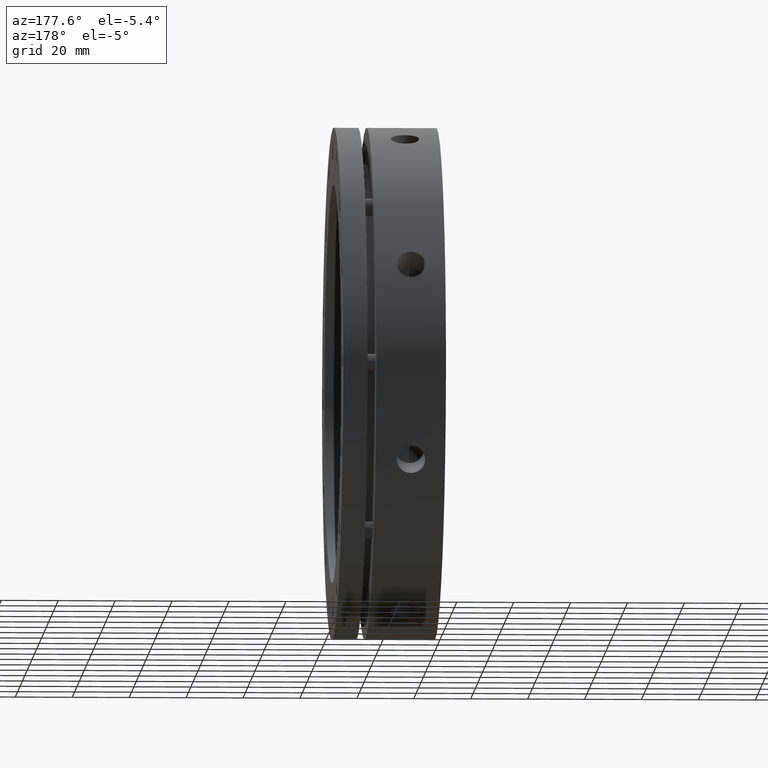
[diagram: clean part render]
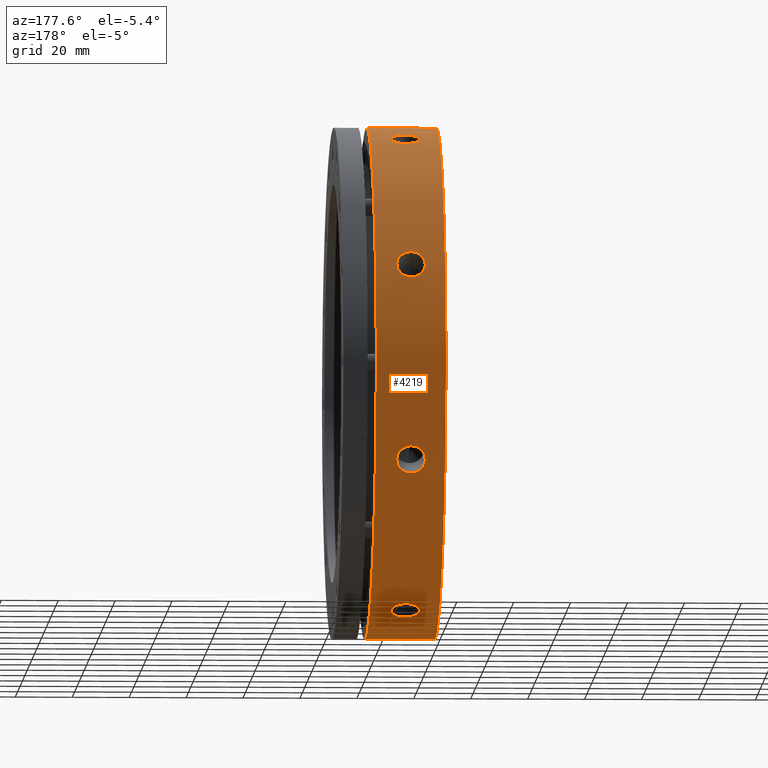
[diagram: same view with one face highlighted and labeled with its STEP entity id]
A machine part, auxiliary view. The second image highlights one B-rep face of the part: STEP entity #4219.
In plain terms, the highlighted cylindrical surface (partial cylindrical patch) has radius 90 mm, axis along (1, 0, 0).
Its self-contained STEP definition (entity closure, byte-faithful):
#109 = EDGE_LOOP ( 'NONE', ( #995, #957 ) ) ;
#120 = EDGE_LOOP ( 'NONE', ( #990, #994 ) ) ;
#276 = EDGE_LOOP ( 'NONE', ( #951, #834 ) ) ;
#280 = EDGE_LOOP ( 'NONE', ( #993, #887 ) ) ;
#285 = EDGE_LOOP ( 'NONE', ( #804, #918, #1013, #1015 ) ) ;
#804 = ORIENTED_EDGE ( 'NONE', *, *, #5485, .T. ) ;
#834 = ORIENTED_EDGE ( 'NONE', *, *, #5481, .T. ) ;
#887 = ORIENTED_EDGE ( 'NONE', *, *, #5480, .T. ) ;
#918 = ORIENTED_EDGE ( 'NONE', *, *, #5501, .T. ) ;
#951 = ORIENTED_EDGE ( 'NONE', *, *, #5483, .T. ) ;
#957 = ORIENTED_EDGE ( 'NONE', *, *, #5484, .T. ) ;
#990 = ORIENTED_EDGE ( 'NONE', *, *, #5486, .T. ) ;
#993 = ORIENTED_EDGE ( 'NONE', *, *, #5482, .T. ) ;
#994 = ORIENTED_EDGE ( 'NONE', *, *, #5479, .T. ) ;
#995 = ORIENTED_EDGE ( 'NONE', *, *, #5503, .T. ) ;
#1013 = ORIENTED_EDGE ( 'NONE', *, *, #5502, .T. ) ;
#1015 = ORIENTED_EDGE ( 'NONE', *, *, #5500, .F. ) ;
#1091 = AXIS2_PLACEMENT_3D ( 'NONE', #5020, #5017, #5019 ) ;
#1508 = FACE_BOUND ( 'NONE', #280, .T. ) ;
#1510 = FACE_BOUND ( 'NONE', #276, .T. ) ;
#1512 = FACE_BOUND ( 'NONE', #109, .T. ) ;
#1514 = FACE_OUTER_BOUND ( 'NONE', #285, .T. ) ;
#1516 = FACE_BOUND ( 'NONE', #120, .T. ) ;
#1521 = CYLINDRICAL_SURFACE ( 'NONE', #1091, 90.00000000000000000 ) ;
#1754 = CIRCLE ( 'NONE', #3706, 90.00000000000000000 ) ;
#1764 = LINE ( 'NONE', #2780, #1773 ) ;
#1772 = LINE ( 'NONE', #2784, #1775 ) ;
#1773 = VECTOR ( 'NONE', #2775, 1000.000000000000000 ) ;
#1774 = CIRCLE ( 'NONE', #3700, 90.00000000000000000 ) ;
#1775 = VECTOR ( 'NONE', #2785, 1000.000000000000000 ) ;
#2358 = CARTESIAN_POINT ( 'NONE',  ( 12.32612550949121300, 84.93415932329185100, 29.76891969900278700 ) ) ;
#2359 = CARTESIAN_POINT ( 'NONE',  ( 11.99999999999997500, 39.00771502411566200, 81.10732499964095200 ) ) ;
#2374 = CARTESIAN_POINT ( 'NONE',  ( 11.99999999999997500, 84.93415932329185100, 29.76891969900278000 ) ) ;
#2376 = CARTESIAN_POINT ( 'NONE',  ( 12.32612550949121700, 39.00771502411564700, 81.10732499964093700 ) ) ;
#2377 = CARTESIAN_POINT ( 'NONE',  ( 11.99999999999997500, 29.76891969900278000, -84.93415932329185100 ) ) ;
#2378 = CARTESIAN_POINT ( 'NONE',  ( 12.65737027968698700, 84.92336391371416900, 29.79977116750092100 ) ) ;
#2379 = CARTESIAN_POINT ( 'NONE',  ( 13.29852594518094100, 84.88087508380931500, 29.92058062710851700 ) ) ;
#2380 = CARTESIAN_POINT ( 'NONE',  ( 13.61015859449483200, 84.84941714429099600, 30.00986761088022100 ) ) ;
#2381 = CARTESIAN_POINT ( 'NONE',  ( 14.21543278121400700, 84.76541055807720700, 30.24633724385606800 ) ) ;
#2382 = CARTESIAN_POINT ( 'NONE',  ( 14.50806750586019700, 84.71266430958922900, 30.39403474705967800 ) ) ;
#2383 = CARTESIAN_POINT ( 'NONE',  ( 15.04965026663262200, 84.58957406704492100, 30.73494431084178700 ) ) ;
#2384 = CARTESIAN_POINT ( 'NONE',  ( 15.30208989391601000, 84.51881738049877400, 30.92933957535089100 ) ) ;
#2385 = CARTESIAN_POINT ( 'NONE',  ( 15.76881778463838300, 84.35716829019804700, 31.36754207815264900 ) ) ;
#2386 = CARTESIAN_POINT ( 'NONE',  ( 15.97584192441452100, 84.26874161883523600, 31.60462865645595400 ) ) ;
#2387 = CARTESIAN_POINT ( 'NONE',  ( 16.24730203763435600, 84.12492282810427500, 31.98461662735880400 ) ) ;
#2388 = CARTESIAN_POINT ( 'NONE',  ( 16.33129981863572400, 84.07508293198527800, 32.11543796058168700 ) ) ;
#2389 = CARTESIAN_POINT ( 'NONE',  ( 16.48603547785158700, 83.97141107743489400, 32.38553762228779900 ) ) ;
#2390 = CARTESIAN_POINT ( 'NONE',  ( 16.55694760745397800, 83.91735359582538900, 32.52538567397824900 ) ) ;
#2391 = CARTESIAN_POINT ( 'NONE',  ( 16.74507471403077500, 83.75240367607447900, 32.94884929024268400 ) ) ;
#2392 = CARTESIAN_POINT ( 'NONE',  ( 16.83955787183227000, 83.63784184992482600, 33.23874308970035700 ) ) ;
#2393 = CARTESIAN_POINT ( 'NONE',  ( 16.96732785968200500, 83.39909397972948600, 33.83332314237531300 ) ) ;
#2394 = CARTESIAN_POINT ( 'NONE',  ( 17.00022855104968000, 83.27424722168162000, 34.13954981833892100 ) ) ;
#2395 = CARTESIAN_POINT ( 'NONE',  ( 16.99976902988360200, 83.02140668700522500, 34.74989415591763700 ) ) ;
#2396 = CARTESIAN_POINT ( 'NONE',  ( 16.96713116693309000, 82.89542430363636100, 35.04926122847557200 ) ) ;
#2397 = CARTESIAN_POINT ( 'NONE',  ( 16.87154011741804300, 82.70721963714065300, 35.49001747927479800 ) ) ;
#2398 = CARTESIAN_POINT ( 'NONE',  ( 16.83184627733577100, 82.64461643195228600, 35.63554465595132800 ) ) ;
#2399 = CARTESIAN_POINT ( 'NONE',  ( 16.73643887229455600, 82.51973678934835700, 35.92377636506886100 ) ) ;
#2400 = CARTESIAN_POINT ( 'NONE',  ( 16.68046873583233500, 82.45730027997993300, 36.06683426132175900 ) ) ;
#2401 = CARTESIAN_POINT ( 'NONE',  ( 16.49196311825188500, 82.27465896226723900, 36.48249038961510800 ) ) ;
#2402 = CARTESIAN_POINT ( 'NONE',  ( 16.33821733731549800, 82.15775705338884900, 36.74475195602558800 ) ) ;
#2403 = CARTESIAN_POINT ( 'NONE',  ( 15.97505265600101300, 81.93437528215417800, 37.24019317184909300 ) ) ;
#2404 = CARTESIAN_POINT ( 'NONE',  ( 15.76376760664116500, 81.82748609554329300, 37.47420027252372400 ) ) ;
#2405 = CARTESIAN_POINT ( 'NONE',  ( 15.30231573997050600, 81.63439600299395200, 37.89298821692368300 ) ) ;
#2406 = CARTESIAN_POINT ( 'NONE',  ( 15.05053459417784900, 81.54693424620467100, 38.08058464915439600 ) ) ;
#2407 = CARTESIAN_POINT ( 'NONE',  ( 14.50379420191406000, 81.39157881469903100, 38.41151273025931800 ) ) ;
#2408 = CARTESIAN_POINT ( 'NONE',  ( 14.21284010557784100, 81.32509905471165700, 38.55183272794557300 ) ) ;
#2409 = CARTESIAN_POINT ( 'NONE',  ( 13.61114198204968200, 81.21798029791435200, 38.77699342741463800 ) ) ;
#2410 = CARTESIAN_POINT ( 'NONE',  ( 13.29595294438844100, 81.17652817880070900, 38.86354829333625800 ) ) ;
#2411 = CARTESIAN_POINT ( 'NONE',  ( 12.65055875801989800, 81.12105782593971500, 38.97920073978748700 ) ) ;
#2412 = CARTESIAN_POINT ( 'NONE',  ( 12.32612524979613000, 81.10732499964095200, 39.00771502411563300 ) ) ;
#2413 = CARTESIAN_POINT ( 'NONE',  ( 11.99999999999997500, 81.10732499964095200, 39.00771502411564700 ) ) ;
#2414 = CARTESIAN_POINT ( 'NONE',  ( 12.32612550949121500, 29.76891969900278000, -84.93415932329183700 ) ) ;
#2415 = CARTESIAN_POINT ( 'NONE',  ( 11.99999999999997500, 29.76891969900278700, 84.93415932329185100 ) ) ;
#2416 = CARTESIAN_POINT ( 'NONE',  ( 12.65737027968698500, 38.97826623421300200, 81.12150677490748800 ) ) ;
#2417 = CARTESIAN_POINT ( 'NONE',  ( 13.29852594518093900, 38.86279690634258800, 81.17688782327711300 ) ) ;
#2418 = CARTESIAN_POINT ( 'NONE',  ( 13.61015859449483200, 38.77741735229035700, 81.21777913261819000 ) ) ;
#2419 = CARTESIAN_POINT ( 'NONE',  ( 14.21543278121401100, 38.55080644449231600, 81.32558678686398000 ) ) ;
#2420 = CARTESIAN_POINT ( 'NONE',  ( 14.50806750586020200, 38.40907130842472800, 81.39272746295559100 ) ) ;
#2421 = CARTESIAN_POINT ( 'NONE',  ( 15.04965026663261800, 38.08097389890208000, 81.54674898207626700 ) ) ;
#2422 = CARTESIAN_POINT ( 'NONE',  ( 15.30208989391600800, 37.89348315626606500, 81.63417465897015300 ) ) ;
#2423 = CARTESIAN_POINT ( 'NONE',  ( 15.76881778463837900, 37.46932402707773200, 81.82972745230989600 ) ) ;
#2424 = CARTESIAN_POINT ( 'NONE',  ( 15.97584192441452400, 37.23915140087277100, 81.93484588059811800 ) ) ;
#2425 = CARTESIAN_POINT ( 'NONE',  ( 16.24730203763435600, 36.86876408769016000, 82.10184270940494900 ) ) ;
#2426 = CARTESIAN_POINT ( 'NONE',  ( 16.33129981863572800, 36.74101730732500200, 82.15910523273129200 ) ) ;
#2427 = CARTESIAN_POINT ( 'NONE',  ( 16.48603547785158700, 36.47672093356563700, 82.27678746374913000 ) ) ;
#2428 = CARTESIAN_POINT ( 'NONE',  ( 16.55694760745397800, 36.33960901605963300, 82.33745055761522700 ) ) ;
#2429 = CARTESIAN_POINT ( 'NONE',  ( 16.74507471403077100, 35.92353781460123900, 82.52024734544950500 ) ) ;
#2430 = CARTESIAN_POINT ( 'NONE',  ( 16.83955787183227300, 35.63754449904524100, 82.64422577273445800 ) ) ;
#2431 = CARTESIAN_POINT ( 'NONE',  ( 16.96732785968201200, 35.04829267383155400, 82.89583712193019900 ) ) ;
#2432 = CARTESIAN_POINT ( 'NONE',  ( 17.00022855104968800, 34.74347772545269200, 83.02409209185951500 ) ) ;
#2433 = CARTESIAN_POINT ( 'NONE',  ( 16.99976902988360500, 34.13311384886346600, 83.27688545519173100 ) ) ;
#2434 = CARTESIAN_POINT ( 'NONE',  ( 16.96713116693309300, 33.83234636420362300, 83.39948694467122400 ) ) ;
#2435 = CARTESIAN_POINT ( 'NONE',  ( 16.87154011741804600, 33.38760383448305200, 83.57806788253165600 ) ) ;
#2436 = CARTESIAN_POINT ( 'NONE',  ( 16.83184627733577100, 33.24043343009543600, 83.63670398509383100 ) ) ;
#2437 = CARTESIAN_POINT ( 'NONE',  ( 16.73643887229455300, 32.94831959190808800, 83.75221133904646800 ) ) ;
#2438 = CARTESIAN_POINT ( 'NONE',  ( 16.68046873583233500, 32.80301310419734100, 83.80921926842117400 ) ) ;
#2439 = CARTESIAN_POINT ( 'NONE',  ( 16.49196311825188100, 32.37995292295987300, 83.97398562109964400 ) ) ;
#2440 = CARTESIAN_POINT ( 'NONE',  ( 16.33821733731549100, 32.11184385840483200, 84.07677042065148500 ) ) ;
#2441 = CARTESIAN_POINT ( 'NONE',  ( 15.97505265600100600, 31.60355924978322400, 84.26914549880612500 ) ) ;
#2442 = CARTESIAN_POINT ( 'NONE',  ( 15.76376760664116200, 31.36250917336233400, 84.35903143785090200 ) ) ;
#2443 = CARTESIAN_POINT ( 'NONE',  ( 15.30231573997050500, 30.92984606417638100, 84.51862391939367600 ) ) ;
#2444 = CARTESIAN_POINT ( 'NONE',  ( 15.05053459417784700, 30.73535055349943000, 84.58942982743022300 ) ) ;
#2445 = CARTESIAN_POINT ( 'NONE',  ( 14.50379420191405400, 30.39149618415329700, 84.71357843855275900 ) ) ;
#2446 = CARTESIAN_POINT ( 'NONE',  ( 14.21284010557783800, 30.24526667315453200, 84.76579137135406900 ) ) ;
#2447 = CARTESIAN_POINT ( 'NONE',  ( 13.61114198204968200, 30.01030961637960100, 84.84925962948173600 ) ) ;
#2448 = CARTESIAN_POINT ( 'NONE',  ( 13.29595294438843900, 29.91979500922191100, 84.88115208759977300 ) ) ;
#2449 = CARTESIAN_POINT ( 'NONE',  ( 12.65055875801990100, 29.79879291741264400, 84.92370725408346700 ) ) ;
#2450 = CARTESIAN_POINT ( 'NONE',  ( 12.32612524979613500, 29.76891969900279400, 84.93415932329185100 ) ) ;
#2451 = CARTESIAN_POINT ( 'NONE',  ( 11.99999999999997500, 29.76891969900278700, 84.93415932329185100 ) ) ;
#2452 = CARTESIAN_POINT ( 'NONE',  ( 11.67387475031763300, 29.76891969900278300, 84.93415932329185100 ) ) ;
#2453 = CARTESIAN_POINT ( 'NONE',  ( 12.65737027968699200, 29.79977116750090700, -84.92336391371415500 ) ) ;
#2454 = CARTESIAN_POINT ( 'NONE',  ( 13.29852594518094500, 29.92058062710852400, -84.88087508380932900 ) ) ;
#2455 = CARTESIAN_POINT ( 'NONE',  ( 13.61015859449483800, 30.00986761088022400, -84.84941714429101000 ) ) ;
#2456 = CARTESIAN_POINT ( 'NONE',  ( 14.21543278121400500, 30.24633724385607200, -84.76541055807719300 ) ) ;
#2457 = CARTESIAN_POINT ( 'NONE',  ( 14.50806750586020200, 30.39403474705968500, -84.71266430958922900 ) ) ;
#2458 = CARTESIAN_POINT ( 'NONE',  ( 15.04965026663262200, 30.73494431084178300, -84.58957406704490700 ) ) ;
#2459 = CARTESIAN_POINT ( 'NONE',  ( 15.30208989391601000, 30.92933957535089500, -84.51881738049876000 ) ) ;
#2460 = CARTESIAN_POINT ( 'NONE',  ( 15.76881778463838700, 31.36754207815264900, -84.35716829019801800 ) ) ;
#2461 = CARTESIAN_POINT ( 'NONE',  ( 15.97584192441452400, 31.60462865645596900, -84.26874161883522200 ) ) ;
#2462 = CARTESIAN_POINT ( 'NONE',  ( 16.24730203763436300, 31.98461662735881800, -84.12492282810431700 ) ) ;
#2463 = CARTESIAN_POINT ( 'NONE',  ( 16.33129981863572800, 32.11543796058169400, -84.07508293198525000 ) ) ;
#2464 = CARTESIAN_POINT ( 'NONE',  ( 16.48603547785158000, 32.38553762228779200, -83.97141107743485100 ) ) ;
#2465 = CARTESIAN_POINT ( 'NONE',  ( 16.55694760745397800, 32.52538567397825600, -83.91735359582536100 ) ) ;
#2466 = CARTESIAN_POINT ( 'NONE',  ( 16.74507471403077800, 32.94884929024267700, -83.75240367607442200 ) ) ;
#2467 = CARTESIAN_POINT ( 'NONE',  ( 16.83955787183227700, 33.23874308970037100, -83.63784184992482600 ) ) ;
#2468 = CARTESIAN_POINT ( 'NONE',  ( 16.96732785968201200, 33.83332314237532800, -83.39909397972947100 ) ) ;
#2469 = CARTESIAN_POINT ( 'NONE',  ( 17.00022855104968400, 34.13954981833895600, -83.27424722168163400 ) ) ;
#2470 = CARTESIAN_POINT ( 'NONE',  ( 16.99976902988360500, 34.74989415591766600, -83.02140668700522500 ) ) ;
#2471 = CARTESIAN_POINT ( 'NONE',  ( 16.96713116693309700, 35.04926122847557900, -82.89542430363636100 ) ) ;
#2472 = CARTESIAN_POINT ( 'NONE',  ( 16.87154011741803200, 35.49001747927481200, -82.70721963714065300 ) ) ;
#2473 = CARTESIAN_POINT ( 'NONE',  ( 16.83184627733577400, 35.63554465595132800, -82.64461643195227200 ) ) ;
#2474 = CARTESIAN_POINT ( 'NONE',  ( 16.73643887229454900, 35.92377636506886100, -82.51973678934837200 ) ) ;
#2475 = CARTESIAN_POINT ( 'NONE',  ( 16.68046873583233100, 36.06683426132178000, -82.45730027997996100 ) ) ;
#2476 = CARTESIAN_POINT ( 'NONE',  ( 16.49196311825188100, 36.48249038961511600, -82.27465896226725300 ) ) ;
#2477 = CARTESIAN_POINT ( 'NONE',  ( 16.33821733731549100, 36.74475195602560300, -82.15775705338884900 ) ) ;
#2478 = CARTESIAN_POINT ( 'NONE',  ( 15.97505265600100100, 37.24019317184911400, -81.93437528215416400 ) ) ;
#2479 = CARTESIAN_POINT ( 'NONE',  ( 15.76376760664115800, 37.47420027252373800, -81.82748609554330700 ) ) ;
#2480 = CARTESIAN_POINT ( 'NONE',  ( 15.30231573997050500, 37.89298821692369000, -81.63439600299399500 ) ) ;
#2481 = CARTESIAN_POINT ( 'NONE',  ( 15.05053459417784500, 38.08058464915441700, -81.54693424620468500 ) ) ;
#2482 = CARTESIAN_POINT ( 'NONE',  ( 14.50379420191405100, 38.41151273025932500, -81.39157881469903100 ) ) ;
#2483 = CARTESIAN_POINT ( 'NONE',  ( 14.21284010557784300, 38.55183272794558000, -81.32509905471165700 ) ) ;
#2484 = CARTESIAN_POINT ( 'NONE',  ( 13.61114198204969000, 38.77699342741465200, -81.21798029791435200 ) ) ;
#2485 = CARTESIAN_POINT ( 'NONE',  ( 13.29595294438843700, 38.86354829333628700, -81.17652817880072300 ) ) ;
#2486 = CARTESIAN_POINT ( 'NONE',  ( 12.65055875801989400, 38.97920073978748000, -81.12105782593970100 ) ) ;
#2487 = CARTESIAN_POINT ( 'NONE',  ( 12.32612524979613300, 39.00771502411564000, -81.10732499964095200 ) ) ;
#2488 = CARTESIAN_POINT ( 'NONE',  ( 11.99999999999997500, 39.00771502411564700, -81.10732499964095200 ) ) ;
#2489 = CARTESIAN_POINT ( 'NONE',  ( 11.99999999999997500, 39.00771502411564700, -81.10732499964095200 ) ) ;
#2490 = CARTESIAN_POINT ( 'NONE',  ( 11.67387475031763700, 39.00771502411564700, -81.10732499964093700 ) ) ;
#2491 = CARTESIAN_POINT ( 'NONE',  ( 11.34263024548122300, 29.79977111771076900, 84.92336393111000300 ) ) ;
#2492 = CARTESIAN_POINT ( 'NONE',  ( 10.70147506198672000, 29.92058038816910300, 84.88087516796002800 ) ) ;
#2493 = CARTESIAN_POINT ( 'NONE',  ( 10.38984263993044600, 30.00986723303912700, 84.84941727763288100 ) ) ;
#2494 = CARTESIAN_POINT ( 'NONE',  ( 9.784568877522081800, 30.24633649139202900, 84.76541082627974800 ) ) ;
#2495 = CARTESIAN_POINT ( 'NONE',  ( 9.491934308543562800, 30.39403377626748400, 84.71266465732578900 ) ) ;
#2496 = CARTESIAN_POINT ( 'NONE',  ( 8.950351802046393200, 30.73494283735487900, 84.58957460185000300 ) ) ;
#2497 = CARTESIAN_POINT ( 'NONE',  ( 8.697912273874063500, 30.92933781433324500, 84.51881802394817100 ) ) ;
#2498 = CARTESIAN_POINT ( 'NONE',  ( 8.231184509415253800, 31.36753965002722600, 84.35716919208690000 ) ) ;
#2499 = CARTESIAN_POINT ( 'NONE',  ( 8.024160301297557800, 31.60462596393482600, 84.26874262749160500 ) ) ;
#2500 = CARTESIAN_POINT ( 'NONE',  ( 7.752700093404480500, 31.98461343284167300, 84.12492404238082600 ) ) ;
#2501 = CARTESIAN_POINT ( 'NONE',  ( 7.668702270182438800, 32.11543459206664900, 84.07508421836884300 ) ) ;
#2502 = CARTESIAN_POINT ( 'NONE',  ( 7.513966501264394400, 32.38553389000565400, 83.97141251653697200 ) ) ;
#2503 = CARTESIAN_POINT ( 'NONE',  ( 7.443054290350761300, 32.52538177481587000, 83.91735510680111100 ) ) ;
#2504 = CARTESIAN_POINT ( 'NONE',  ( 7.254926885759543300, 32.94884494383942600, 83.75240538480517200 ) ) ;
#2505 = CARTESIAN_POINT ( 'NONE',  ( 7.160443490617742800, 33.23873843631301400, 83.63784369788911000 ) ) ;
#2506 = CARTESIAN_POINT ( 'NONE',  ( 7.032672915429127000, 33.83331784860927600, 83.39909612594817600 ) ) ;
#2507 = CARTESIAN_POINT ( 'NONE',  ( 6.999771861206028200, 34.13954367116936300, 83.27424974313254300 ) ) ;
#2508 = CARTESIAN_POINT ( 'NONE',  ( 7.000230549090345800, 34.74988864371597000, 83.02140899555142500 ) ) ;
#2509 = CARTESIAN_POINT ( 'NONE',  ( 7.032868067021524900, 35.04925602091644500, 82.89542650666926700 ) ) ;
#2510 = CARTESIAN_POINT ( 'NONE',  ( 7.128458667797832300, 35.49001271578178100, 82.70722168147855800 ) ) ;
#2511 = CARTESIAN_POINT ( 'NONE',  ( 7.168152370039210000, 35.63554003828612300, 82.64461842333510300 ) ) ;
#2512 = CARTESIAN_POINT ( 'NONE',  ( 7.263559518672740200, 35.92377203536555200, 82.51973867451378900 ) ) ;
#2513 = CARTESIAN_POINT ( 'NONE',  ( 7.319529549027063100, 36.06683010936345100, 82.45730209640559800 ) ) ;
#2514 = CARTESIAN_POINT ( 'NONE',  ( 7.508034910518385500, 36.48248678314900700, 82.27466056289557600 ) ) ;
#2515 = CARTESIAN_POINT ( 'NONE',  ( 7.661780573890997200, 36.74474868439592300, 82.15775851773769000 ) ) ;
#2516 = CARTESIAN_POINT ( 'NONE',  ( 8.024945096849906500, 37.24019052823823700, 81.93437648483593700 ) ) ;
#2517 = CARTESIAN_POINT ( 'NONE',  ( 8.236230141321224000, 37.47419796568208000, 81.82748715294290800 ) ) ;
#2518 = CARTESIAN_POINT ( 'NONE',  ( 8.697682104525176400, 37.89298652372399800, 81.63439678988895300 ) ) ;
#2519 = CARTESIAN_POINT ( 'NONE',  ( 8.949463334026274800, 38.08058322539799400, 81.54693491165453200 ) ) ;
#2520 = CARTESIAN_POINT ( 'NONE',  ( 9.496203953252088300, 38.41151178337803200, 81.39157926215396800 ) ) ;
#2521 = CARTESIAN_POINT ( 'NONE',  ( 9.787158256819935800, 38.55183201573553500, 81.32509939262769200 ) ) ;
#2522 = CARTESIAN_POINT ( 'NONE',  ( 10.38885678200217600, 38.77699306431659200, 81.21798047156924800 ) ) ;
#2523 = CARTESIAN_POINT ( 'NONE',  ( 10.70404603099220800, 38.86354806210020700, 81.17652828958738100 ) ) ;
#2524 = CARTESIAN_POINT ( 'NONE',  ( 11.34944072548375400, 38.97920069486077200, 81.12105784760896700 ) ) ;
#2525 = CARTESIAN_POINT ( 'NONE',  ( 11.67387449062255600, 39.00771502411566200, 81.10732499964093700 ) ) ;
#2526 = CARTESIAN_POINT ( 'NONE',  ( 11.99999999999997500, 39.00771502411566200, 81.10732499964095200 ) ) ;
#2527 = CARTESIAN_POINT ( 'NONE',  ( 12.32612550949121700, 81.10732499964096600, -39.00771502411564700 ) ) ;
#2528 = CARTESIAN_POINT ( 'NONE',  ( 11.99999999999997500, 81.10732499964096600, -39.00771502411564700 ) ) ;
#2529 = CARTESIAN_POINT ( 'NONE',  ( 11.34263024548122300, 38.97826628172065700, -81.12150675200123800 ) ) ;
#2530 = CARTESIAN_POINT ( 'NONE',  ( 10.70147506198672200, 38.86279713480180200, -81.17688771382493900 ) ) ;
#2531 = CARTESIAN_POINT ( 'NONE',  ( 10.38984263993044100, 38.77741771375131200, -81.21777895973116300 ) ) ;
#2532 = CARTESIAN_POINT ( 'NONE',  ( 9.784568877522081800, 38.55080716621261400, -81.32558644443945200 ) ) ;
#2533 = CARTESIAN_POINT ( 'NONE',  ( 9.491934308543562800, 38.40907224076534700, -81.39272702238872600 ) ) ;
#2534 = CARTESIAN_POINT ( 'NONE',  ( 8.950351802046396800, 38.08097531897898600, -81.54674831832805600 ) ) ;
#2535 = CARTESIAN_POINT ( 'NONE',  ( 8.697912273874067100, 37.89348485648103100, -81.63417386873005900 ) ) ;
#2536 = CARTESIAN_POINT ( 'NONE',  ( 8.231184509415264500, 37.46932638175344700, -81.82972637309774200 ) ) ;
#2537 = CARTESIAN_POINT ( 'NONE',  ( 8.024160301297561300, 37.23915401800048400, -81.93484468992592400 ) ) ;
#2538 = CARTESIAN_POINT ( 'NONE',  ( 7.752700093404485800, 36.86876720517806700, -82.10184130916340500 ) ) ;
#2539 = CARTESIAN_POINT ( 'NONE',  ( 7.668702270182444100, 36.74102059883538400, -82.15910376044206500 ) ) ;
#2540 = CARTESIAN_POINT ( 'NONE',  ( 7.513966501264397900, 36.47672459028652300, -82.27678584222594800 ) ) ;
#2541 = CARTESIAN_POINT ( 'NONE',  ( 7.443054290350761300, 36.33961284160499600, -82.33744886891223300 ) ) ;
#2542 = CARTESIAN_POINT ( 'NONE',  ( 7.254926885759543300, 35.92354209622752100, -82.52024548033335800 ) ) ;
#2543 = CARTESIAN_POINT ( 'NONE',  ( 7.160443490617742800, 35.63754909619509400, -82.64422378900076200 ) ) ;
#2544 = CARTESIAN_POINT ( 'NONE',  ( 7.032672915429128800, 35.04829793469522800, -82.89583489627810300 ) ) ;
#2545 = CARTESIAN_POINT ( 'NONE',  ( 6.999771861206025600, 34.74348385509302500, -83.02408952808922000 ) ) ;
#2546 = CARTESIAN_POINT ( 'NONE',  ( 7.000230549090346700, 34.13311937896732200, -83.27688318986520200 ) ) ;
#2547 = CARTESIAN_POINT ( 'NONE',  ( 7.032868067021524000, 33.83235160428349500, -83.39948482015036300 ) ) ;
#2548 = CARTESIAN_POINT ( 'NONE',  ( 7.128458667797828800, 33.38760864834647900, -83.57806595979860700 ) ) ;
#2549 = CARTESIAN_POINT ( 'NONE',  ( 7.168152370039211800, 33.24043810339812700, -83.63670212803177200 ) ) ;
#2550 = CARTESIAN_POINT ( 'NONE',  ( 7.263559518672742000, 32.94832398648388500, -83.75220961049711800 ) ) ;
#2551 = CARTESIAN_POINT ( 'NONE',  ( 7.319529549027058700, 32.80301732448211300, -83.80921761695017800 ) ) ;
#2552 = CARTESIAN_POINT ( 'NONE',  ( 7.508034910518381000, 32.37995660493165700, -83.97398420275816000 ) ) ;
#2553 = CARTESIAN_POINT ( 'NONE',  ( 7.661780573890991000, 32.11184720724735800, -84.07676914271097200 ) ) ;
#2554 = CARTESIAN_POINT ( 'NONE',  ( 8.024945096849897700, 31.60356196952280400, -84.26914447991532600 ) ) ;
#2555 = CARTESIAN_POINT ( 'NONE',  ( 8.236230141321206200, 31.36251155224013200, -84.35903055436193700 ) ) ;
#2556 = CARTESIAN_POINT ( 'NONE',  ( 8.697682104525162200, 30.92984781786813600, -84.51862327853950800 ) ) ;
#2557 = CARTESIAN_POINT ( 'NONE',  ( 8.949463334026273000, 30.73535203079134000, -84.58942929122652300 ) ) ;
#2558 = CARTESIAN_POINT ( 'NONE',  ( 9.496203953252083000, 30.39149717009788900, -84.71357808540501800 ) ) ;
#2559 = CARTESIAN_POINT ( 'NONE',  ( 9.787158256819930500, 30.24526741570580100, -84.76579110668826900 ) ) ;
#2560 = CARTESIAN_POINT ( 'NONE',  ( 10.38885678200217600, 30.01030999592127600, -84.84925949552520300 ) ) ;
#2561 = CARTESIAN_POINT ( 'NONE',  ( 10.70404603099221000, 29.91979525106850700, -84.88115200242920400 ) ) ;
#2562 = CARTESIAN_POINT ( 'NONE',  ( 11.34944072548374700, 29.79879296450306100, -84.92370723763788500 ) ) ;
#2563 = CARTESIAN_POINT ( 'NONE',  ( 11.67387449062255000, 29.76891969900277200, -84.93415932329183700 ) ) ;
#2564 = CARTESIAN_POINT ( 'NONE',  ( 11.99999999999997500, 29.76891969900278000, -84.93415932329185100 ) ) ;
#2566 = CARTESIAN_POINT ( 'NONE',  ( 12.65737027968698700, 81.12150677490748800, -38.97826623421298800 ) ) ;
#2567 = CARTESIAN_POINT ( 'NONE',  ( 13.29852594518094700, 81.17688782327709900, -38.86279690634258100 ) ) ;
#2568 = CARTESIAN_POINT ( 'NONE',  ( 13.61015859449483800, 81.21777913261819000, -38.77741735229035000 ) ) ;
#2569 = CARTESIAN_POINT ( 'NONE',  ( 14.21543278121400900, 81.32558678686400800, -38.55080644449231600 ) ) ;
#2570 = CARTESIAN_POINT ( 'NONE',  ( 14.50806750586020600, 81.39272746295559100, -38.40907130842472100 ) ) ;
#2571 = CARTESIAN_POINT ( 'NONE',  ( 15.04965026663262300, 81.54674898207630900, -38.08097389890206600 ) ) ;
#2572 = CARTESIAN_POINT ( 'NONE',  ( 15.30208989391600700, 81.63417465897013900, -37.89348315626604300 ) ) ;
#2573 = CARTESIAN_POINT ( 'NONE',  ( 15.76881778463838300, 81.82972745230988200, -37.46932402707769700 ) ) ;
#2574 = CARTESIAN_POINT ( 'NONE',  ( 15.97584192441452400, 81.93484588059810400, -37.23915140087273600 ) ) ;
#2575 = CARTESIAN_POINT ( 'NONE',  ( 16.24730203763436600, 82.10184270940496300, -36.86876408769014500 ) ) ;
#2576 = CARTESIAN_POINT ( 'NONE',  ( 16.33129981863573500, 82.15910523273130700, -36.74101730732498800 ) ) ;
#2577 = CARTESIAN_POINT ( 'NONE',  ( 16.48603547785158700, 82.27678746374910200, -36.47672093356562300 ) ) ;
#2578 = CARTESIAN_POINT ( 'NONE',  ( 16.55694760745397800, 82.33745055761522700, -36.33960901605961900 ) ) ;
#2579 = CARTESIAN_POINT ( 'NONE',  ( 16.74507471403077800, 82.52024734544951900, -35.92353781460122500 ) ) ;
#2580 = CARTESIAN_POINT ( 'NONE',  ( 16.83955787183228400, 82.64422577273448700, -35.63754449904523400 ) ) ;
#2581 = CARTESIAN_POINT ( 'NONE',  ( 16.96732785968201500, 82.89583712193021400, -35.04829267383153300 ) ) ;
#2582 = CARTESIAN_POINT ( 'NONE',  ( 17.00022855104968400, 83.02409209185951500, -34.74347772545266400 ) ) ;
#2583 = CARTESIAN_POINT ( 'NONE',  ( 16.99976902988360200, 83.27688545519174600, -34.13311384886344500 ) ) ;
#2584 = CARTESIAN_POINT ( 'NONE',  ( 16.96713116693309300, 83.39948694467125300, -33.83234636420359500 ) ) ;
#2585 = CARTESIAN_POINT ( 'NONE',  ( 16.87154011741804300, 83.57806788253167000, -33.38760383448303100 ) ) ;
#2586 = CARTESIAN_POINT ( 'NONE',  ( 16.83184627733577100, 83.63670398509383100, -33.24043343009542200 ) ) ;
#2587 = CARTESIAN_POINT ( 'NONE',  ( 16.73643887229454900, 83.75221133904649700, -32.94831959190807400 ) ) ;
#2588 = CARTESIAN_POINT ( 'NONE',  ( 16.68046873583233500, 83.80921926842116000, -32.80301310419732600 ) ) ;
#2589 = CARTESIAN_POINT ( 'NONE',  ( 16.49196311825188100, 83.97398562109964400, -32.37995292295985200 ) ) ;
#2590 = CARTESIAN_POINT ( 'NONE',  ( 16.33821733731549100, 84.07677042065149900, -32.11184385840481800 ) ) ;
#2591 = CARTESIAN_POINT ( 'NONE',  ( 15.97505265600101700, 84.26914549880616800, -31.60355924978321700 ) ) ;
#2592 = CARTESIAN_POINT ( 'NONE',  ( 15.76376760664115100, 84.35903143785095900, -31.36250917336232300 ) ) ;
#2593 = CARTESIAN_POINT ( 'NONE',  ( 15.30231573997049900, 84.51862391939367600, -30.92984606417637400 ) ) ;
#2594 = CARTESIAN_POINT ( 'NONE',  ( 15.05053459417785100, 84.58942982743025100, -30.73535055349941900 ) ) ;
#2595 = CARTESIAN_POINT ( 'NONE',  ( 14.50379420191405400, 84.71357843855280100, -30.39149618415327900 ) ) ;
#2596 = CARTESIAN_POINT ( 'NONE',  ( 14.21284010557784000, 84.76579137135409800, -30.24526667315452500 ) ) ;
#2597 = CARTESIAN_POINT ( 'NONE',  ( 13.61114198204967900, 84.84925962948172200, -30.01030961637958000 ) ) ;
#2598 = CARTESIAN_POINT ( 'NONE',  ( 13.29595294438843700, 84.88115208759977300, -29.91979500922189300 ) ) ;
#2599 = CARTESIAN_POINT ( 'NONE',  ( 12.65055875801989400, 84.92370725408343900, -29.79879291741261900 ) ) ;
#2600 = CARTESIAN_POINT ( 'NONE',  ( 12.32612524979613000, 84.93415932329183700, -29.76891969900278000 ) ) ;
#2601 = CARTESIAN_POINT ( 'NONE',  ( 11.99999999999997500, 84.93415932329185100, -29.76891969900277200 ) ) ;
#2602 = CARTESIAN_POINT ( 'NONE',  ( 11.99999999999997500, 81.10732499964095200, 39.00771502411564700 ) ) ;
#2603 = CARTESIAN_POINT ( 'NONE',  ( 11.67387475031763200, 81.10732499964095200, 39.00771502411566200 ) ) ;
#2604 = CARTESIAN_POINT ( 'NONE',  ( -2.775557561562891400E-014, 0.0000000000000000000, 0.0000000000000000000 ) ) ;
#2605 = DIRECTION ( 'NONE',  ( 1.000000000000000000, 0.0000000000000000000, 0.0000000000000000000 ) ) ;
#2606 = DIRECTION ( 'NONE',  ( 0.0000000000000000000, 0.0000000000000000000, -1.000000000000000000 ) ) ;
#2608 = CARTESIAN_POINT ( 'NONE',  ( 11.34263024548121900, 81.12150675200123800, 38.97826628172065700 ) ) ;
#2609 = CARTESIAN_POINT ( 'NONE',  ( 10.70147506198672400, 81.17688771382496800, 38.86279713480182400 ) ) ;
#2610 = CARTESIAN_POINT ( 'NONE',  ( 10.38984263993044300, 81.21777895973117700, 38.77741771375131900 ) ) ;
#2611 = CARTESIAN_POINT ( 'NONE',  ( 9.784568877522080000, 81.32558644443946600, 38.55080716621262100 ) ) ;
#2612 = CARTESIAN_POINT ( 'NONE',  ( 9.491934308543564600, 81.39272702238874000, 38.40907224076535400 ) ) ;
#2613 = CARTESIAN_POINT ( 'NONE',  ( 8.950351802046402100, 81.54674831832804200, 38.08097531897899300 ) ) ;
#2614 = CARTESIAN_POINT ( 'NONE',  ( 8.697912273874060000, 81.63417386873007300, 37.89348485648103100 ) ) ;
#2615 = CARTESIAN_POINT ( 'NONE',  ( 8.231184509415255600, 81.82972637309777000, 37.46932638175344000 ) ) ;
#2616 = CARTESIAN_POINT ( 'NONE',  ( 8.024160301297559500, 81.93484468992593900, 37.23915401800049100 ) ) ;
#2617 = CARTESIAN_POINT ( 'NONE',  ( 7.752700093404484100, 82.10184130916340500, 36.86876720517805900 ) ) ;
#2618 = CARTESIAN_POINT ( 'NONE',  ( 7.668702270182438800, 82.15910376044205100, 36.74102059883537000 ) ) ;
#2619 = CARTESIAN_POINT ( 'NONE',  ( 7.513966501264389900, 82.27678584222592000, 36.47672459028649400 ) ) ;
#2620 = CARTESIAN_POINT ( 'NONE',  ( 7.443054290350755100, 82.33744886891223300, 36.33961284160497500 ) ) ;
#2621 = CARTESIAN_POINT ( 'NONE',  ( 7.254926885759537000, 82.52024548033340100, 35.92354209622750700 ) ) ;
#2622 = CARTESIAN_POINT ( 'NONE',  ( 7.160443490617739200, 82.64422378900080400, 35.63754909619507300 ) ) ;
#2623 = CARTESIAN_POINT ( 'NONE',  ( 7.032672915429127000, 82.89583489627808900, 35.04829793469519900 ) ) ;
#2624 = CARTESIAN_POINT ( 'NONE',  ( 6.999771861206025600, 83.02408952808924900, 34.74348385509301800 ) ) ;
#2625 = CARTESIAN_POINT ( 'NONE',  ( 7.000230549090349400, 83.27688318986521700, 34.13311937896731500 ) ) ;
#2626 = CARTESIAN_POINT ( 'NONE',  ( 7.032868067021526700, 83.39948482015036300, 33.83235160428347400 ) ) ;
#2627 = CARTESIAN_POINT ( 'NONE',  ( 7.128458667797834100, 83.57806595979859300, 33.38760864834644300 ) ) ;
#2628 = CARTESIAN_POINT ( 'NONE',  ( 7.168152370039210000, 83.63670212803177200, 33.24043810339810500 ) ) ;
#2629 = CARTESIAN_POINT ( 'NONE',  ( 7.263559518672742900, 83.75220961049711800, 32.94832398648387100 ) ) ;
#2630 = CARTESIAN_POINT ( 'NONE',  ( 7.319529549027062200, 83.80921761695015000, 32.80301732448209200 ) ) ;
#2631 = CARTESIAN_POINT ( 'NONE',  ( 7.508034910518388100, 83.97398420275811800, 32.37995660493164300 ) ) ;
#2632 = CARTESIAN_POINT ( 'NONE',  ( 7.661780573890998100, 84.07676914271098700, 32.11184720724735800 ) ) ;
#2633 = CARTESIAN_POINT ( 'NONE',  ( 8.024945096849903000, 84.26914447991532600, 31.60356196952279700 ) ) ;
#2634 = CARTESIAN_POINT ( 'NONE',  ( 8.236230141321224000, 84.35903055436193700, 31.36251155224013200 ) ) ;
#2635 = CARTESIAN_POINT ( 'NONE',  ( 8.697682104525178200, 84.51862327853949400, 30.92984781786814000 ) ) ;
#2636 = CARTESIAN_POINT ( 'NONE',  ( 8.949463334026281900, 84.58942929122655100, 30.73535203079132900 ) ) ;
#2637 = CARTESIAN_POINT ( 'NONE',  ( 9.496203953252091900, 84.71357808540501800, 30.39149717009788900 ) ) ;
#2638 = CARTESIAN_POINT ( 'NONE',  ( 9.787158256819942900, 84.76579110668825500, 30.24526741570579700 ) ) ;
#2639 = CARTESIAN_POINT ( 'NONE',  ( 10.38885678200218100, 84.84925949552516000, 30.01030999592126500 ) ) ;
#2640 = CARTESIAN_POINT ( 'NONE',  ( 10.70404603099221300, 84.88115200242918900, 29.91979525106850700 ) ) ;
#2641 = CARTESIAN_POINT ( 'NONE',  ( 11.34944072548375400, 84.92370723763788500, 29.79879296450306500 ) ) ;
#2642 = CARTESIAN_POINT ( 'NONE',  ( 11.67387449062255600, 84.93415932329188000, 29.76891969900278300 ) ) ;
#2643 = CARTESIAN_POINT ( 'NONE',  ( 11.99999999999997500, 84.93415932329185100, 29.76891969900278000 ) ) ;
#2775 = DIRECTION ( 'NONE',  ( 1.000000000000000000, 0.0000000000000000000, 0.0000000000000000000 ) ) ;
#2780 = CARTESIAN_POINT ( 'NONE',  ( 17.99999999999997500, 0.0000000000000000000, -90.00000000000000000 ) ) ;
#2784 = CARTESIAN_POINT ( 'NONE',  ( 17.99999999999997500, 1.102182119232617900E-014, 90.00000000000000000 ) ) ;
#2785 = DIRECTION ( 'NONE',  ( 1.000000000000000000, 0.0000000000000000000, 0.0000000000000000000 ) ) ;
#2786 = CARTESIAN_POINT ( 'NONE',  ( 11.99999999999997500, 84.93415932329185100, -29.76891969900277200 ) ) ;
#2787 = CARTESIAN_POINT ( 'NONE',  ( 11.67387475031763300, 84.93415932329188000, -29.76891969900278000 ) ) ;
#2788 = CARTESIAN_POINT ( 'NONE',  ( 24.49999999999997500, 0.0000000000000000000, 0.0000000000000000000 ) ) ;
#2789 = DIRECTION ( 'NONE',  ( -1.000000000000000000, -0.0000000000000000000, -0.0000000000000000000 ) ) ;
#2790 = DIRECTION ( 'NONE',  ( 0.0000000000000000000, 0.0000000000000000000, -1.000000000000000000 ) ) ;
#2791 = CARTESIAN_POINT ( 'NONE',  ( 11.34263024548121700, 84.92336393111000300, -29.79977111771076200 ) ) ;
#2792 = CARTESIAN_POINT ( 'NONE',  ( 10.70147506198672400, 84.88087516796002800, -29.92058038816909300 ) ) ;
#2793 = CARTESIAN_POINT ( 'NONE',  ( 10.38984263993044600, 84.84941727763288100, -30.00986723303911300 ) ) ;
#2794 = CARTESIAN_POINT ( 'NONE',  ( 9.784568877522081800, 84.76541082627979100, -30.24633649139202200 ) ) ;
#2795 = CARTESIAN_POINT ( 'NONE',  ( 9.491934308543566300, 84.71266465732578900, -30.39403377626747000 ) ) ;
#2796 = CARTESIAN_POINT ( 'NONE',  ( 8.950351802046400400, 84.58957460185003200, -30.73494283735486500 ) ) ;
#2797 = CARTESIAN_POINT ( 'NONE',  ( 8.697912273874061700, 84.51881802394815700, -30.92933781433323800 ) ) ;
#2798 = CARTESIAN_POINT ( 'NONE',  ( 8.231184509415260900, 84.35716919208697100, -31.36753965002723300 ) ) ;
#2799 = CARTESIAN_POINT ( 'NONE',  ( 8.024160301297563100, 84.26874262749157700, -31.60462596393479700 ) ) ;
#2800 = CARTESIAN_POINT ( 'NONE',  ( 7.752700093404485800, 84.12492404238085400, -31.98461343284165900 ) ) ;
#2801 = CARTESIAN_POINT ( 'NONE',  ( 7.668702270182440600, 84.07508421836887200, -32.11543459206664200 ) ) ;
#2802 = CARTESIAN_POINT ( 'NONE',  ( 7.513966501264393500, 83.97141251653698600, -32.38553389000563200 ) ) ;
#2803 = CARTESIAN_POINT ( 'NONE',  ( 7.443054290350763000, 83.91735510680111100, -32.52538177481584800 ) ) ;
#2804 = CARTESIAN_POINT ( 'NONE',  ( 7.254926885759544100, 83.75240538480515800, -32.94884494383940400 ) ) ;
#2805 = CARTESIAN_POINT ( 'NONE',  ( 7.160443490617741000, 83.63784369788908200, -33.23873843631300700 ) ) ;
#2806 = CARTESIAN_POINT ( 'NONE',  ( 7.032672915429127900, 83.39909612594813400, -33.83331784860924800 ) ) ;
#2807 = CARTESIAN_POINT ( 'NONE',  ( 6.999771861206025600, 83.27424974313251500, -34.13954367116933500 ) ) ;
#2808 = CARTESIAN_POINT ( 'NONE',  ( 7.000230549090348500, 83.02140899555144000, -34.74988864371594100 ) ) ;
#2809 = CARTESIAN_POINT ( 'NONE',  ( 7.032868067021523100, 82.89542650666926700, -35.04925602091641700 ) ) ;
#2810 = CARTESIAN_POINT ( 'NONE',  ( 7.128458667797828800, 82.70722168147858600, -35.49001271578177400 ) ) ;
#2811 = CARTESIAN_POINT ( 'NONE',  ( 7.168152370039206500, 82.64461842333510300, -35.63554003828610200 ) ) ;
#2812 = CARTESIAN_POINT ( 'NONE',  ( 7.263559518672739300, 82.51973867451377500, -35.92377203536553100 ) ) ;
#2813 = CARTESIAN_POINT ( 'NONE',  ( 7.319529549027060400, 82.45730209640559800, -36.06683010936344400 ) ) ;
#2814 = CARTESIAN_POINT ( 'NONE',  ( 7.508034910518381900, 82.27466056289557600, -36.48248678314898500 ) ) ;
#2815 = CARTESIAN_POINT ( 'NONE',  ( 7.661780573890993700, 82.15775851773770500, -36.74474868439591500 ) ) ;
#2816 = CARTESIAN_POINT ( 'NONE',  ( 8.024945096849901200, 81.93437648483589400, -37.24019052823821600 ) ) ;
#2817 = CARTESIAN_POINT ( 'NONE',  ( 8.236230141321216900, 81.82748715294287900, -37.47419796568204500 ) ) ;
#2818 = CARTESIAN_POINT ( 'NONE',  ( 8.697682104525174700, 81.63439678988893900, -37.89298652372399100 ) ) ;
#2819 = CARTESIAN_POINT ( 'NONE',  ( 8.949463334026280100, 81.54693491165453200, -38.08058322539798700 ) ) ;
#2820 = CARTESIAN_POINT ( 'NONE',  ( 9.496203953252091900, 81.39157926215395400, -38.41151178337801800 ) ) ;
#2821 = CARTESIAN_POINT ( 'NONE',  ( 9.787158256819934000, 81.32509939262769200, -38.55183201573552100 ) ) ;
#2822 = CARTESIAN_POINT ( 'NONE',  ( 10.38885678200217900, 81.21798047156924800, -38.77699306431657100 ) ) ;
#2823 = CARTESIAN_POINT ( 'NONE',  ( 10.70404603099220400, 81.17652828958738100, -38.86354806210019300 ) ) ;
#2824 = CARTESIAN_POINT ( 'NONE',  ( 11.34944072548375400, 81.12105784760898100, -38.97920069486076500 ) ) ;
#2825 = CARTESIAN_POINT ( 'NONE',  ( 11.67387449062255400, 81.10732499964095200, -39.00771502411564700 ) ) ;
#2826 = CARTESIAN_POINT ( 'NONE',  ( 11.99999999999997500, 81.10732499964096600, -39.00771502411564700 ) ) ;
#3700 = AXIS2_PLACEMENT_3D ( 'NONE', #2788, #2789, #2790 ) ;
#3706 = AXIS2_PLACEMENT_3D ( 'NONE', #2604, #2605, #2606 ) ;
#4070 = VERTEX_POINT ( 'NONE', #4623 ) ;
#4072 = VERTEX_POINT ( 'NONE', #4625 ) ;
#4073 = VERTEX_POINT ( 'NONE', #4626 ) ;
#4074 = VERTEX_POINT ( 'NONE', #4627 ) ;
#4075 = VERTEX_POINT ( 'NONE', #4628 ) ;
#4076 = VERTEX_POINT ( 'NONE', #4629 ) ;
#4078 = VERTEX_POINT ( 'NONE', #4631 ) ;
#4081 = VERTEX_POINT ( 'NONE', #4634 ) ;
#4082 = VERTEX_POINT ( 'NONE', #4635 ) ;
#4084 = VERTEX_POINT ( 'NONE', #4637 ) ;
#4085 = VERTEX_POINT ( 'NONE', #4638 ) ;
#4086 = VERTEX_POINT ( 'NONE', #4639 ) ;
#4219 = ADVANCED_FACE ( 'NONE', ( #1508, #1516, #1512, #1510, #1514 ), #1521, .T. ) ;
#4623 = CARTESIAN_POINT ( 'NONE',  ( 11.99999999999997500, 84.93415932329185100, -29.76891969900277200 ) ) ;
#4625 = CARTESIAN_POINT ( 'NONE',  ( 24.49999999999997500, 0.0000000000000000000, -90.00000000000000000 ) ) ;
#4626 = CARTESIAN_POINT ( 'NONE',  ( 11.99999999999997500, 29.76891969900278000, -84.93415932329185100 ) ) ;
#4627 = CARTESIAN_POINT ( 'NONE',  ( 11.99999999999997500, 81.10732499964096600, -39.00771502411564700 ) ) ;
#4628 = CARTESIAN_POINT ( 'NONE',  ( 11.99999999999997500, 39.00771502411564700, -81.10732499964095200 ) ) ;
#4629 = CARTESIAN_POINT ( 'NONE',  ( 11.99999999999997500, 39.00771502411566200, 81.10732499964095200 ) ) ;
#4631 = CARTESIAN_POINT ( 'NONE',  ( 11.99999999999997500, 81.10732499964095200, 39.00771502411564700 ) ) ;
#4634 = CARTESIAN_POINT ( 'NONE',  ( -2.775557561562891400E-014, 1.102182119232617900E-014, 90.00000000000000000 ) ) ;
#4635 = CARTESIAN_POINT ( 'NONE',  ( 11.99999999999997500, 84.93415932329185100, 29.76891969900278000 ) ) ;
#4637 = CARTESIAN_POINT ( 'NONE',  ( -2.775557561562891400E-014, 0.0000000000000000000, -90.00000000000000000 ) ) ;
#4638 = CARTESIAN_POINT ( 'NONE',  ( 11.99999999999997500, 29.76891969900278700, 84.93415932329185100 ) ) ;
#4639 = CARTESIAN_POINT ( 'NONE',  ( 24.49999999999997500, 1.102182119232617900E-014, 90.00000000000000000 ) ) ;
#5017 = DIRECTION ( 'NONE',  ( 1.000000000000000000, 0.0000000000000000000, 0.0000000000000000000 ) ) ;
#5019 = DIRECTION ( 'NONE',  ( 0.0000000000000000000, 0.0000000000000000000, -1.000000000000000000 ) ) ;
#5020 = CARTESIAN_POINT ( 'NONE',  ( 17.99999999999997500, 0.0000000000000000000, 0.0000000000000000000 ) ) ;
#5479 = EDGE_CURVE ( 'NONE', #4082, #4078, #5846, .T. ) ;
#5480 = EDGE_CURVE ( 'NONE', #4076, #4085, #5845, .T. ) ;
#5481 = EDGE_CURVE ( 'NONE', #4073, #4075, #5854, .T. ) ;
#5482 = EDGE_CURVE ( 'NONE', #4085, #4076, #5851, .T. ) ;
#5483 = EDGE_CURVE ( 'NONE', #4075, #4073, #5855, .T. ) ;
#5484 = EDGE_CURVE ( 'NONE', #4074, #4070, #5857, .T. ) ;
#5485 = EDGE_CURVE ( 'NONE', #4084, #4081, #1754, .T. ) ;
#5486 = EDGE_CURVE ( 'NONE', #4078, #4082, #5860, .T. ) ;
#5500 = EDGE_CURVE ( 'NONE', #4084, #4072, #1764, .T. ) ;
#5501 = EDGE_CURVE ( 'NONE', #4081, #4086, #1772, .T. ) ;
#5502 = EDGE_CURVE ( 'NONE', #4086, #4072, #1774, .T. ) ;
#5503 = EDGE_CURVE ( 'NONE', #4070, #4074, #5848, .T. ) ;
#5845 = B_SPLINE_CURVE_WITH_KNOTS ( 'NONE', 3,
 ( #2359, #2376, #2416, #2417, #2418, #2419, #2420, #2421, #2422, #2423, #2424, #2425, #2426, #2427, #2428, #2429, #2430, #2431, #2432, #2433, #2434, #2435, #2436, #2437, #2438, #2439, #2440, #2441, #2442, #2443, #2444, #2445, #2446, #2447, #2448, #2449, #2450, #2451 ),
 .UNSPECIFIED., .F., .F.,
 ( 4, 2, 2, 2, 2, 2, 2, 2, 2, 2, 2, 2, 2, 2, 2, 2, 2, 2, 4 ),
 ( 0.007819427552685547000, 0.008796428196781070800, 0.009773428840876594700, 0.01075042948497211900, 0.01172743012906764200, 0.01270443077316316600, 0.01319293109521092400, 0.01368143141725868000, 0.01465843206135418100, 0.01563543270544968300, 0.01661243334954518000, 0.01710093367159294000, 0.01758943399364069900, 0.01856643463773625600, 0.01954343528183181300, 0.02052043592592736600, 0.02149743657002291900, 0.02247443721411847600, 0.02345143785821403000 ),
 .UNSPECIFIED. ) ;
#5846 = B_SPLINE_CURVE_WITH_KNOTS ( 'NONE', 3,
 ( #2374, #2358, #2378, #2379, #2380, #2381, #2382, #2383, #2384, #2385, #2386, #2387, #2388, #2389, #2390, #2391, #2392, #2393, #2394, #2395, #2396, #2397, #2398, #2399, #2400, #2401, #2402, #2403, #2404, #2405, #2406, #2407, #2408, #2409, #2410, #2411, #2412, #2413 ),
 .UNSPECIFIED., .F., .F.,
 ( 4, 2, 2, 2, 2, 2, 2, 2, 2, 2, 2, 2, 2, 2, 2, 2, 2, 2, 4 ),
 ( 0.007819427552685526100, 0.008796428196781065600, 0.009773428840876605100, 0.01075042948497214300, 0.01172743012906768200, 0.01270443077316322200, 0.01319293109521099300, 0.01368143141725876800, 0.01465843206135432300, 0.01563543270544987700, 0.01661243334954543000, 0.01710093367159319600, 0.01758943399364095600, 0.01856643463773646100, 0.01954343528183197200, 0.02052043592592747700, 0.02149743657002298500, 0.02247443721411849400, 0.02345143785821400200 ),
 .UNSPECIFIED. ) ;
#5848 = B_SPLINE_CURVE_WITH_KNOTS ( 'NONE', 3,
 ( #2786, #2787, #2791, #2792, #2793, #2794, #2795, #2796, #2797, #2798, #2799, #2800, #2801, #2802, #2803, #2804, #2805, #2806, #2807, #2808, #2809, #2810, #2811, #2812, #2813, #2814, #2815, #2816, #2817, #2818, #2819, #2820, #2821, #2822, #2823, #2824, #2825, #2826 ),
 .UNSPECIFIED., .F., .F.,
 ( 4, 2, 2, 2, 2, 2, 2, 2, 2, 2, 2, 2, 2, 2, 2, 2, 2, 2, 4 ),
 ( 0.02345143785821404400, 0.02442843850196862300, 0.02540543914572319900, 0.02638243978947777900, 0.02735944043323235800, 0.02833644107698693500, 0.02882494139886423300, 0.02931344172074153200, 0.03029044236449609000, 0.03126744300825065600, 0.03224444365200521800, 0.03273294397388248900, 0.03322144429575976700, 0.03419844493951430800, 0.03517544558326885600, 0.03615244622702340500, 0.03712944687077794600, 0.03810644751453249500, 0.03908344815828703600 ),
 .UNSPECIFIED. ) ;
#5851 = B_SPLINE_CURVE_WITH_KNOTS ( 'NONE', 3,
 ( #2415, #2452, #2491, #2492, #2493, #2494, #2495, #2496, #2497, #2498, #2499, #2500, #2501, #2502, #2503, #2504, #2505, #2506, #2507, #2508, #2509, #2510, #2511, #2512, #2513, #2514, #2515, #2516, #2517, #2518, #2519, #2520, #2521, #2522, #2523, #2524, #2525, #2526 ),
 .UNSPECIFIED., .F., .F.,
 ( 4, 2, 2, 2, 2, 2, 2, 2, 2, 2, 2, 2, 2, 2, 2, 2, 2, 2, 4 ),
 ( 0.02345143785821403000, 0.02442843850196860600, 0.02540543914572318500, 0.02638243978947776200, 0.02735944043323234100, 0.02833644107698691700, 0.02882494139886419800, 0.02931344172074148300, 0.03029044236449603500, 0.03126744300825058700, 0.03224444365200514200, 0.03273294397388242000, 0.03322144429575971100, 0.03419844493951426000, 0.03517544558326880800, 0.03615244622702335600, 0.03712944687077790500, 0.03810644751453246000, 0.03908344815828700800 ),
 .UNSPECIFIED. ) ;
#5854 = B_SPLINE_CURVE_WITH_KNOTS ( 'NONE', 3,
 ( #2377, #2414, #2453, #2454, #2455, #2456, #2457, #2458, #2459, #2460, #2461, #2462, #2463, #2464, #2465, #2466, #2467, #2468, #2469, #2470, #2471, #2472, #2473, #2474, #2475, #2476, #2477, #2478, #2479, #2480, #2481, #2482, #2483, #2484, #2485, #2486, #2487, #2488 ),
 .UNSPECIFIED., .F., .F.,
 ( 4, 2, 2, 2, 2, 2, 2, 2, 2, 2, 2, 2, 2, 2, 2, 2, 2, 2, 4 ),
 ( 0.007819427552685526100, 0.008796428196781053500, 0.009773428840876580800, 0.01075042948497210800, 0.01172743012906763600, 0.01270443077316316300, 0.01319293109521092900, 0.01368143141725869700, 0.01465843206135421200, 0.01563543270544973100, 0.01661243334954524300, 0.01710093367159301900, 0.01758943399364079600, 0.01856643463773633600, 0.01954343528183187500, 0.02052043592592741500, 0.02149743657002295400, 0.02247443721411849400, 0.02345143785821403300 ),
 .UNSPECIFIED. ) ;
#5855 = B_SPLINE_CURVE_WITH_KNOTS ( 'NONE', 3,
 ( #2489, #2490, #2529, #2530, #2531, #2532, #2533, #2534, #2535, #2536, #2537, #2538, #2539, #2540, #2541, #2542, #2543, #2544, #2545, #2546, #2547, #2548, #2549, #2550, #2551, #2552, #2553, #2554, #2555, #2556, #2557, #2558, #2559, #2560, #2561, #2562, #2563, #2564 ),
 .UNSPECIFIED., .F., .F.,
 ( 4, 2, 2, 2, 2, 2, 2, 2, 2, 2, 2, 2, 2, 2, 2, 2, 2, 2, 4 ),
 ( 0.02345143785821403300, 0.02442843850196860200, 0.02540543914572317200, 0.02638243978947774400, 0.02735944043323231300, 0.02833644107698688300, 0.02882494139886417100, 0.02931344172074145500, 0.03029044236449601400, 0.03126744300825057300, 0.03224444365200512800, 0.03273294397388240600, 0.03322144429575969000, 0.03419844493951425300, 0.03517544558326880800, 0.03615244622702336300, 0.03712944687077791800, 0.03810644751453248100, 0.03908344815828703600 ),
 .UNSPECIFIED. ) ;
#5857 = B_SPLINE_CURVE_WITH_KNOTS ( 'NONE', 3,
 ( #2528, #2527, #2566, #2567, #2568, #2569, #2570, #2571, #2572, #2573, #2574, #2575, #2576, #2577, #2578, #2579, #2580, #2581, #2582, #2583, #2584, #2585, #2586, #2587, #2588, #2589, #2590, #2591, #2592, #2593, #2594, #2595, #2596, #2597, #2598, #2599, #2600, #2601 ),
 .UNSPECIFIED., .F., .F.,
 ( 4, 2, 2, 2, 2, 2, 2, 2, 2, 2, 2, 2, 2, 2, 2, 2, 2, 2, 4 ),
 ( 0.007819427552685540000, 0.008796428196781093400, 0.009773428840876646800, 0.01075042948497220000, 0.01172743012906775400, 0.01270443077316330700, 0.01319293109521107800, 0.01368143141725885000, 0.01465843206135437900, 0.01563543270544991100, 0.01661243334954543700, 0.01710093367159319600, 0.01758943399364094900, 0.01856643463773646400, 0.01954343528183197900, 0.02052043592592749400, 0.02149743657002301000, 0.02247443721411852800, 0.02345143785821404400 ),
 .UNSPECIFIED. ) ;
#5860 = B_SPLINE_CURVE_WITH_KNOTS ( 'NONE', 3,
 ( #2602, #2603, #2608, #2609, #2610, #2611, #2612, #2613, #2614, #2615, #2616, #2617, #2618, #2619, #2620, #2621, #2622, #2623, #2624, #2625, #2626, #2627, #2628, #2629, #2630, #2631, #2632, #2633, #2634, #2635, #2636, #2637, #2638, #2639, #2640, #2641, #2642, #2643 ),
 .UNSPECIFIED., .F., .F.,
 ( 4, 2, 2, 2, 2, 2, 2, 2, 2, 2, 2, 2, 2, 2, 2, 2, 2, 2, 4 ),
 ( 0.02345143785821400200, 0.02442843850196855700, 0.02540543914572310900, 0.02638243978947766400, 0.02735944043323222000, 0.02833644107698677500, 0.02882494139886405600, 0.02931344172074134100, 0.03029044236449591000, 0.03126744300825047600, 0.03224444365200504500, 0.03273294397388232900, 0.03322144429575961400, 0.03419844493951418300, 0.03517544558326875200, 0.03615244622702330100, 0.03712944687077785600, 0.03810644751453241100, 0.03908344815828696700 ),
 .UNSPECIFIED. ) ;